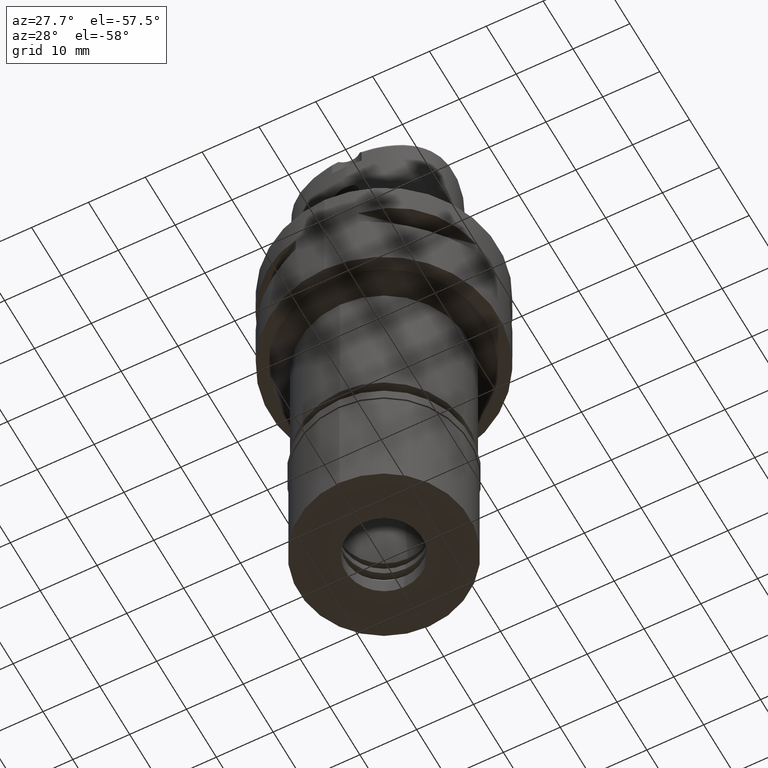
[diagram: clean part render]
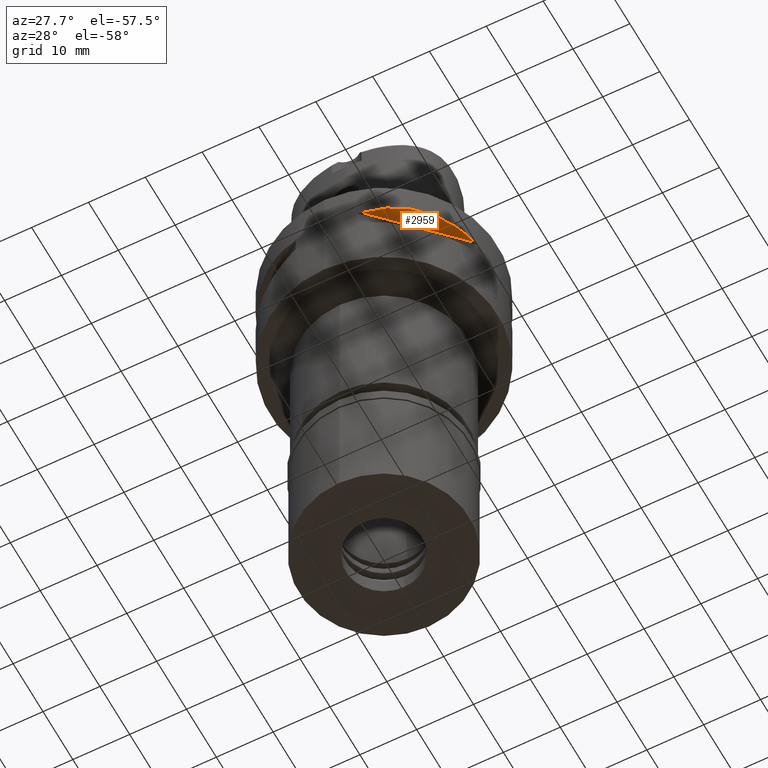
[diagram: same view with one face highlighted and labeled with its STEP entity id]
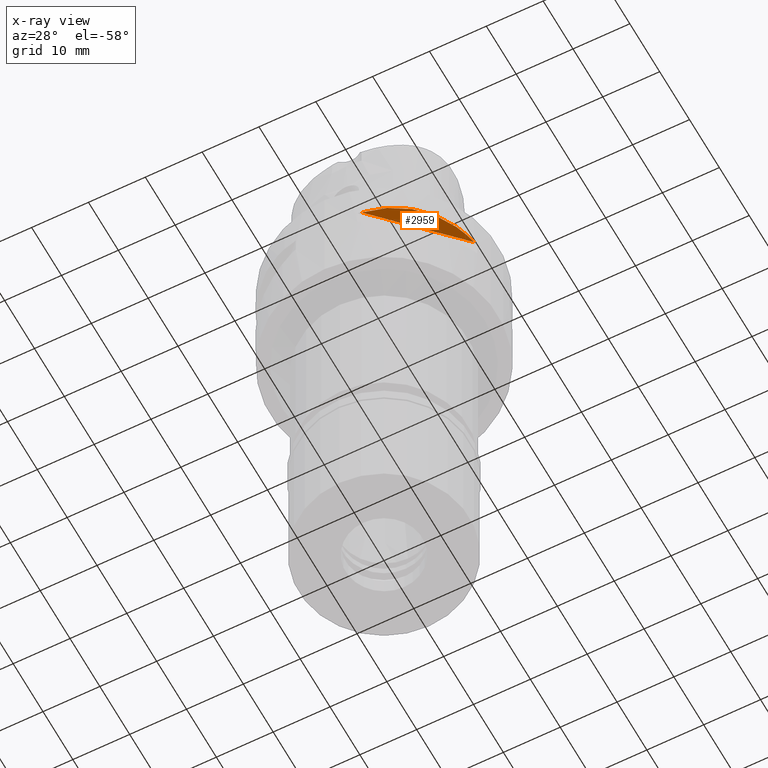
[diagram: x-ray of the same camera — body ghosted, the highlighted face saturated]
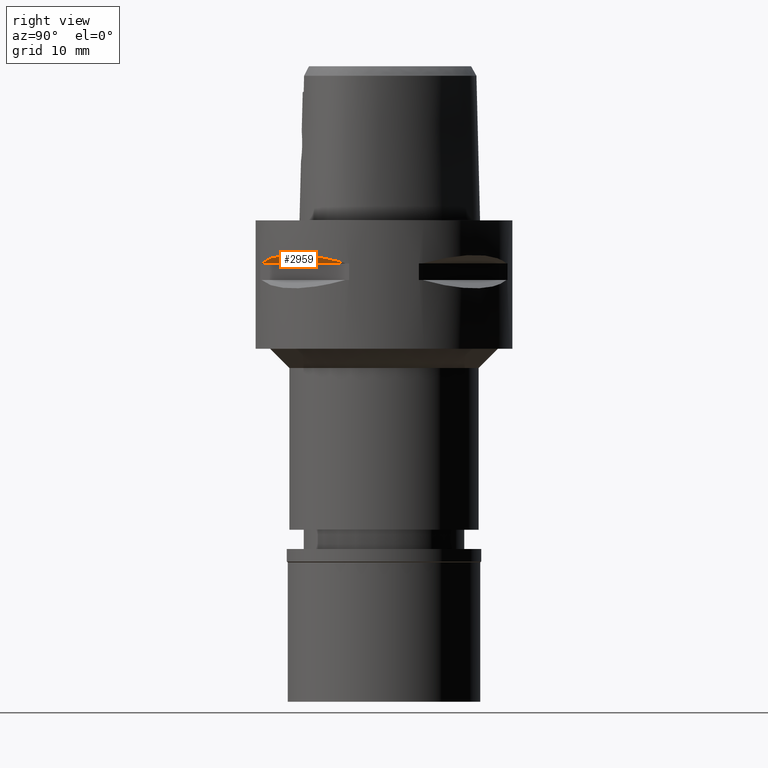
[diagram: same view with one face highlighted and labeled with its STEP entity id]
A machine part, auxiliary view. The second image highlights one B-rep face of the part: STEP entity #2959.
The next image is the same camera in x-ray: the body ghosted, the highlighted face saturated — about 0% of this face is hidden behind the body in this view.
A second angle (right view) of the same face is appended — the face is thin or edge-on in the first view.
In plain terms, the highlighted planar face has unit normal (-0.3536, 0.3536, 0.866).
Its self-contained STEP definition (entity closure, byte-faithful):
#305 = CARTESIAN_POINT ( 'NONE',  ( 9.064227960972564446, -17.89933467640222631, -5.942799019125480697 ) ) ;
#667 = CARTESIAN_POINT ( 'NONE',  ( 13.03584482972171266, -15.24842641774017871, -5.401930550037072010 ) ) ;
#688 = CARTESIAN_POINT ( 'NONE',  ( 15.24842641774014851, -13.03584482972174285, -5.401917027256925685 ) ) ;
#824 = CARTESIAN_POINT ( 'NONE',  ( 25.80939751330999954, -4.596194077713001036, -4.535898384861999588 ) ) ;
#844 = VECTOR ( 'NONE', #929, 1000.000000000000114 ) ;
#929 = DIRECTION ( 'NONE',  ( 0.7071067811865474617, 0.7071067811865474617, 0.0000000000000000000 ) ) ;
#976 = CARTESIAN_POINT ( 'NONE',  ( 6.037787676659999825, -19.06685920573999837, -6.700000000000000178 ) ) ;
#1150 = EDGE_LOOP ( 'NONE', ( #2826, #2780 ) ) ;
#1176 = EDGE_CURVE ( 'NONE', #4358, #2488, #2620, .T. ) ;
#1442 = CARTESIAN_POINT ( 'NONE',  ( 6.037787676659999825, -19.06685920573999837, -6.700000000000000178 ) ) ;
#1527 = DIRECTION ( 'NONE',  ( 0.7071067811865475727, 0.7071067811865475727, 0.0000000000000000000 ) ) ;
#1599 = PLANE ( 'NONE',  #3070 ) ;
#2077 = CARTESIAN_POINT ( 'NONE',  ( 19.06685920573999837, -6.037787676659999825, -6.700000000000000178 ) ) ;
#2439 = CARTESIAN_POINT ( 'NONE',  ( 17.89930010962307705, -9.064296220445328345, -5.942778734625644432 ) ) ;
#2488 = VERTEX_POINT ( 'NONE', #4060 ) ;
#2551 = EDGE_CURVE ( 'NONE', #4358, #2488, #4146, .T. ) ;
#2620 = B_SPLINE_CURVE_WITH_KNOTS ( 'NONE', 3,
 ( #976, #3981, #305, #4311, #667, #688, #3614, #2439, #3957, #2077 ),
 .UNSPECIFIED., .F., .F.,
 ( 4, 2, 2, 2, 4 ),
 ( 0.0000000000000000000, 0.2500000000000000000, 0.5000000000000000000, 0.7500000000000000000, 1.000000000000000000 ),
 .UNSPECIFIED. ) ;
#2780 = ORIENTED_EDGE ( 'NONE', *, *, #1176, .F. ) ;
#2826 = ORIENTED_EDGE ( 'NONE', *, *, #2551, .T. ) ;
#2959 = ADVANCED_FACE ( 'NONE', ( #3015 ), #1599, .F. ) ;
#3015 = FACE_OUTER_BOUND ( 'NONE', #1150, .T. ) ;
#3070 = AXIS2_PLACEMENT_3D ( 'NONE', #824, #4499, #1527 ) ;
#3614 = CARTESIAN_POINT ( 'NONE',  ( 16.23556379045570353, -11.78782756882606009, -5.510086664174642657 ) ) ;
#3784 = CARTESIAN_POINT ( 'NONE',  ( 6.037787676657999647, -19.06685920573999837, -6.700000000000000178 ) ) ;
#3957 = CARTESIAN_POINT ( 'NONE',  ( 18.57569612330580711, -7.588842109405603331, -6.267301168158929237 ) ) ;
#3981 = CARTESIAN_POINT ( 'NONE',  ( 7.588793634791429987, -18.57571147347044516, -6.267314691158821560 ) ) ;
#4060 = CARTESIAN_POINT ( 'NONE',  ( 19.06685920573999837, -6.037787676659999825, -6.700000000000000178 ) ) ;
#4146 = LINE ( 'NONE', #3784, #844 ) ;
#4311 = CARTESIAN_POINT ( 'NONE',  ( 11.78776565403155452, -16.23560874349852057, -5.510106948674482474 ) ) ;
#4358 = VERTEX_POINT ( 'NONE', #1442 ) ;
#4499 = DIRECTION ( 'NONE',  ( -0.3535533905933054277, 0.3535533905933054277, 0.8660254037844128394 ) ) ;